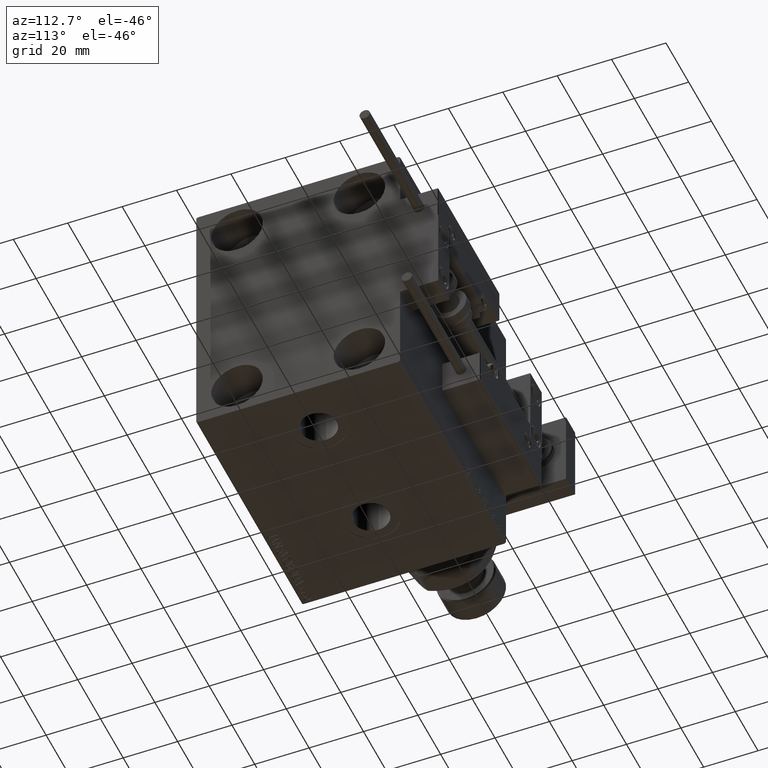
[diagram: clean part render]
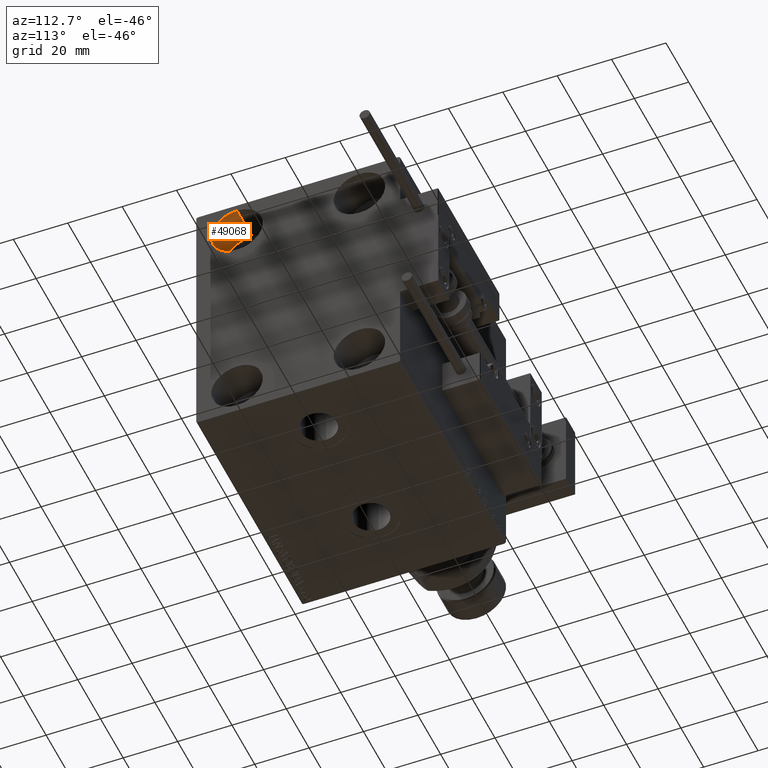
[diagram: same view with one face highlighted and labeled with its STEP entity id]
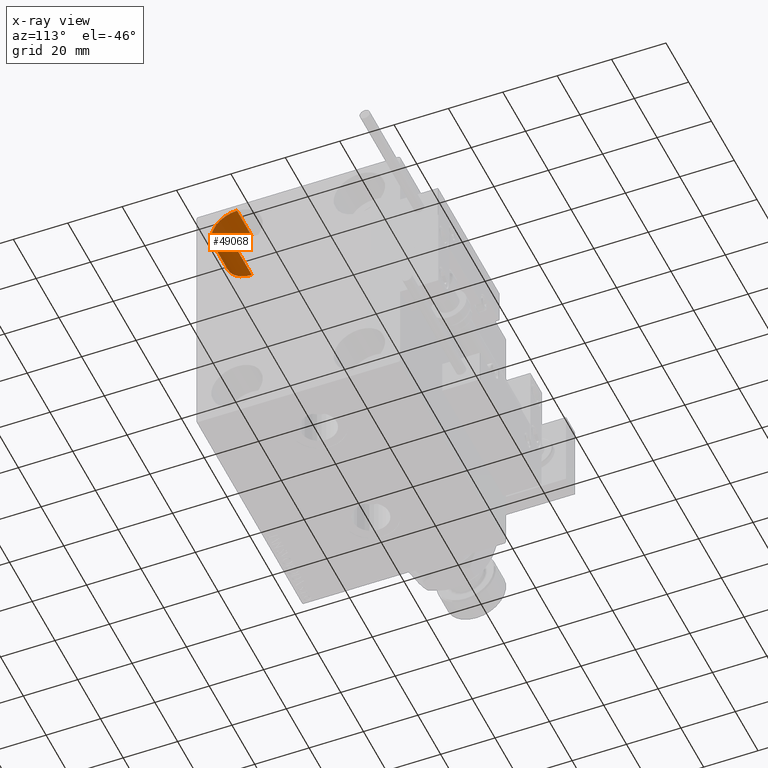
[diagram: x-ray of the same camera — body ghosted, the highlighted face saturated]
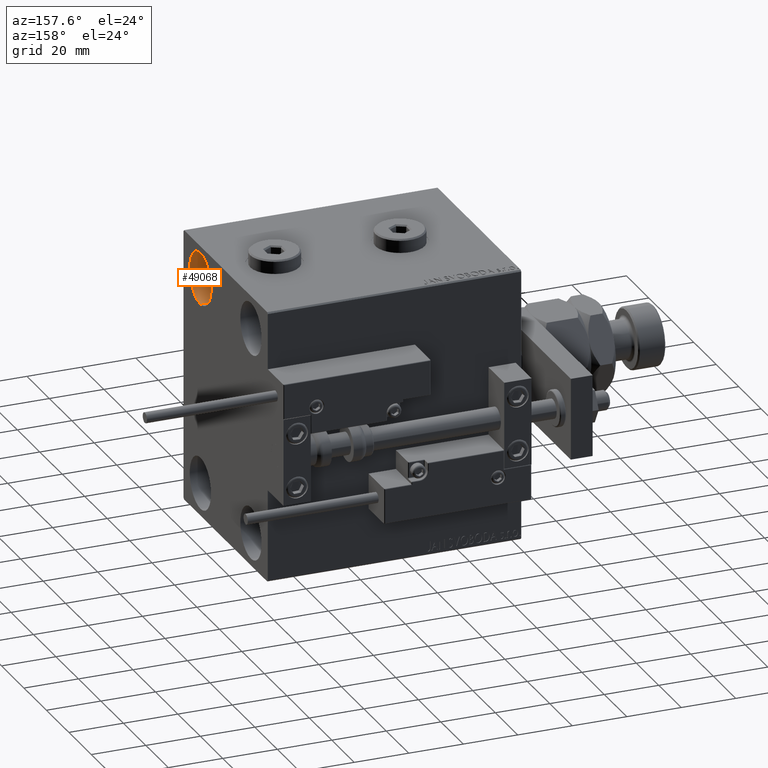
[diagram: same view with one face highlighted and labeled with its STEP entity id]
A machine part, auxiliary view. The second image highlights one B-rep face of the part: STEP entity #49068.
The next image is the same camera in x-ray: the body ghosted, the highlighted face saturated — about 0% of this face is hidden behind the body in this view.
A second angle (auxiliary view) of the same face is appended — the face is thin or edge-on in the first view.
In plain terms, the highlighted cylindrical surface (edge-blend (fillet) strip) has radius 9.5 mm, axis along (1, 0, 0).
Its self-contained STEP definition (entity closure, byte-faithful):
#1131 = VERTEX_POINT ( 'NONE', #18249 ) ;
#2859 = AXIS2_PLACEMENT_3D ( 'NONE', #45426, #11844, #52701 ) ;
#3018 = EDGE_LOOP ( 'NONE', ( #34105, #42539, #20369, #22290 ) ) ;
#3959 = AXIS2_PLACEMENT_3D ( 'NONE', #10762, #30634, #35188 ) ;
#8154 = LINE ( 'NONE', #24507, #46770 ) ;
#10762 = CARTESIAN_POINT ( 'NONE',  ( 93.00000000000000000, -22.49999999999999645, 37.99999999999999289 ) ) ;
#11844 = DIRECTION ( 'NONE',  ( -1.000000000000000000, -0.000000000000000000, -0.000000000000000000 ) ) ;
#12215 = EDGE_CURVE ( 'NONE', #36515, #19777, #34460, .T. ) ;
#12403 = DIRECTION ( 'NONE',  ( 1.000000000000000000, -0.000000000000000000, -0.000000000000000000 ) ) ;
#16812 = AXIS2_PLACEMENT_3D ( 'NONE', #45995, #12403, #46254 ) ;
#17221 = CYLINDRICAL_SURFACE ( 'NONE', #16812, 9.500000000000001776 ) ;
#17779 = CIRCLE ( 'NONE', #3959, 9.500000000000001776 ) ;
#18249 = CARTESIAN_POINT ( 'NONE',  ( 80.00000000000000000, -22.49999999999999645, 28.49999999999998934 ) ) ;
#18821 = VECTOR ( 'NONE', #33409, 1000.000000000000000 ) ;
#19777 = VERTEX_POINT ( 'NONE', #42723 ) ;
#20369 = ORIENTED_EDGE ( 'NONE', *, *, #33697, .F. ) ;
#22290 = ORIENTED_EDGE ( 'NONE', *, *, #27766, .F. ) ;
#23422 = CIRCLE ( 'NONE', #2859, 9.500000000000001776 ) ;
#23894 = VERTEX_POINT ( 'NONE', #36259 ) ;
#24507 = CARTESIAN_POINT ( 'NONE',  ( 80.00000000000000000, -22.49999999999999645, 28.49999999999998934 ) ) ;
#26134 = CARTESIAN_POINT ( 'NONE',  ( 80.00000000000000000, -22.49999999999999645, 47.49999999999999289 ) ) ;
#27766 = EDGE_CURVE ( 'NONE', #1131, #23894, #8154, .T. ) ;
#30634 = DIRECTION ( 'NONE',  ( -1.000000000000000000, -0.000000000000000000, -0.000000000000000000 ) ) ;
#31015 = CARTESIAN_POINT ( 'NONE',  ( 80.00000000000000000, -22.49999999999999645, 47.49999999999999289 ) ) ;
#33409 = DIRECTION ( 'NONE',  ( 1.000000000000000000, -0.000000000000000000, -0.000000000000000000 ) ) ;
#33697 = EDGE_CURVE ( 'NONE', #23894, #19777, #17779, .T. ) ;
#34105 = ORIENTED_EDGE ( 'NONE', *, *, #42663, .T. ) ;
#34460 = LINE ( 'NONE', #26134, #18821 ) ;
#35188 = DIRECTION ( 'NONE',  ( 0.000000000000000000, 0.000000000000000000, 1.000000000000000000 ) ) ;
#36259 = CARTESIAN_POINT ( 'NONE',  ( 93.00000000000000000, -22.49999999999999645, 28.49999999999998934 ) ) ;
#36515 = VERTEX_POINT ( 'NONE', #31015 ) ;
#40654 = DIRECTION ( 'NONE',  ( 1.000000000000000000, -0.000000000000000000, -0.000000000000000000 ) ) ;
#42539 = ORIENTED_EDGE ( 'NONE', *, *, #12215, .T. ) ;
#42663 = EDGE_CURVE ( 'NONE', #1131, #36515, #23422, .T. ) ;
#42723 = CARTESIAN_POINT ( 'NONE',  ( 93.00000000000000000, -22.49999999999999645, 47.49999999999999289 ) ) ;
#45426 = CARTESIAN_POINT ( 'NONE',  ( 80.00000000000000000, -22.49999999999999645, 37.99999999999999289 ) ) ;
#45995 = CARTESIAN_POINT ( 'NONE',  ( 80.00000000000000000, -22.49999999999999645, 37.99999999999999289 ) ) ;
#46254 = DIRECTION ( 'NONE',  ( 0.000000000000000000, 0.000000000000000000, -1.000000000000000000 ) ) ;
#46770 = VECTOR ( 'NONE', #40654, 1000.000000000000000 ) ;
#49068 = ADVANCED_FACE ( 'NONE', ( #50290 ), #17221, .F. ) ;
#50290 = FACE_OUTER_BOUND ( 'NONE', #3018, .T. ) ;
#52701 = DIRECTION ( 'NONE',  ( 0.000000000000000000, 0.000000000000000000, 1.000000000000000000 ) ) ;